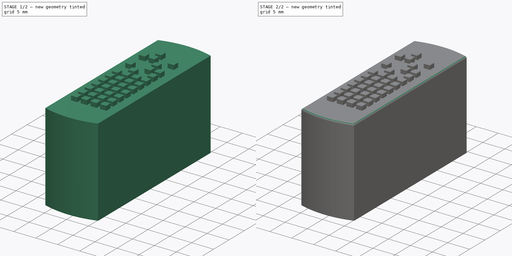
[diagram: build sequence overview — one tinted view per stage of 2, left to right]
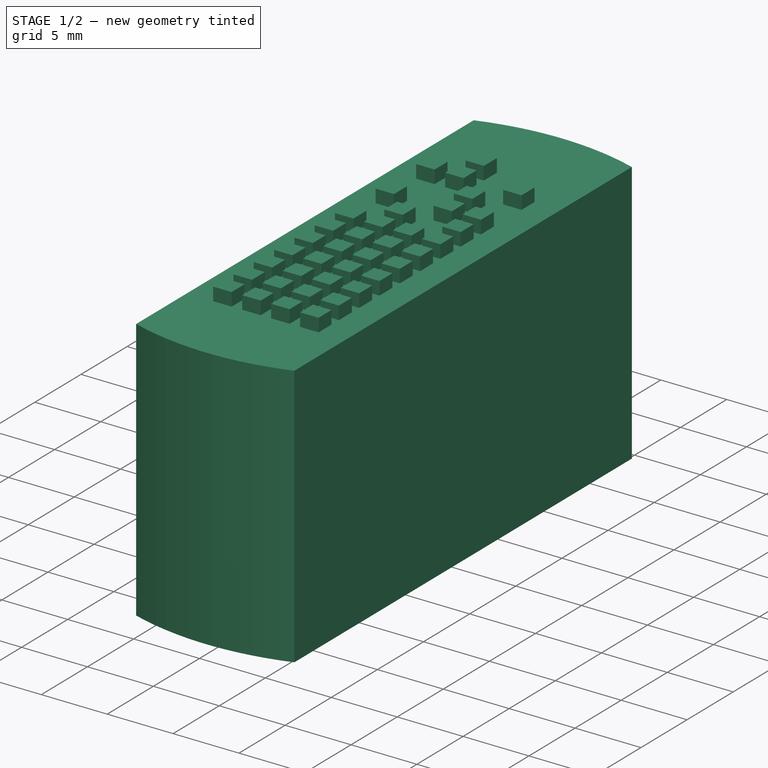
[diagram: stage 1 of 2 — iso view after this stage's code; geometry added in this stage tinted green]
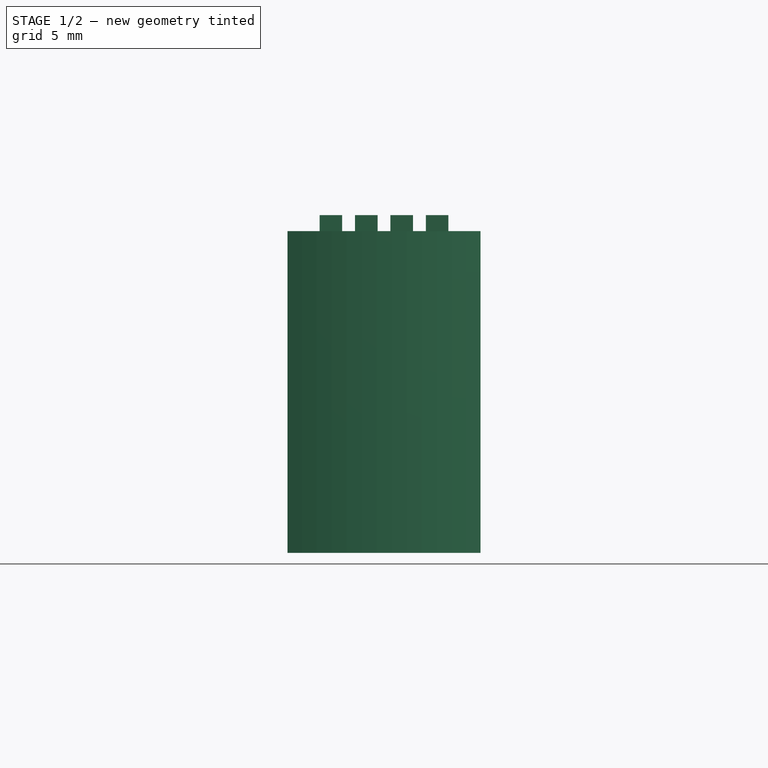
[diagram: stage 1 of 2 — front view after this stage's code; geometry added in this stage tinted green]
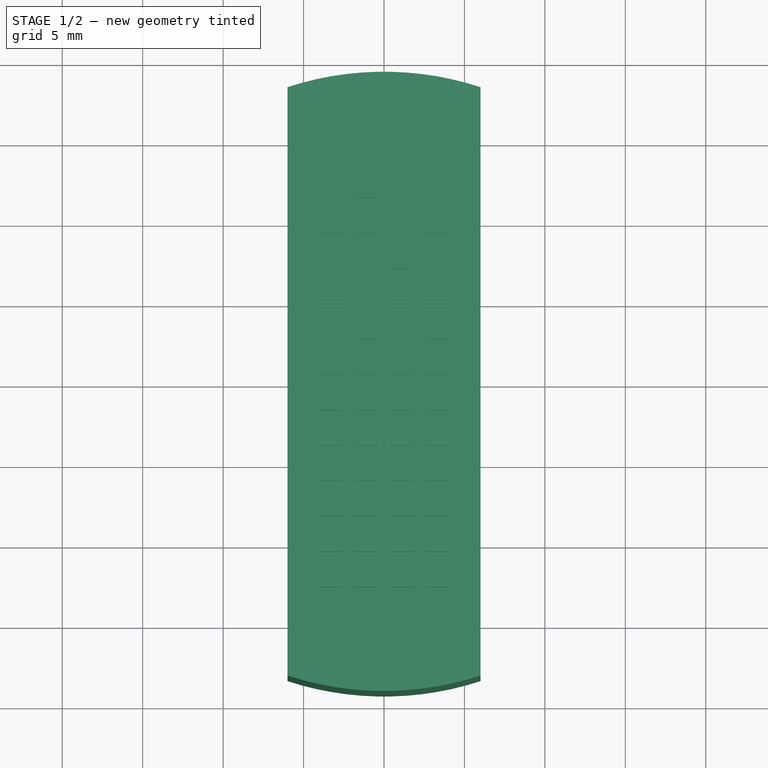
[diagram: stage 1 of 2 — top view after this stage's code; geometry added in this stage tinted green]
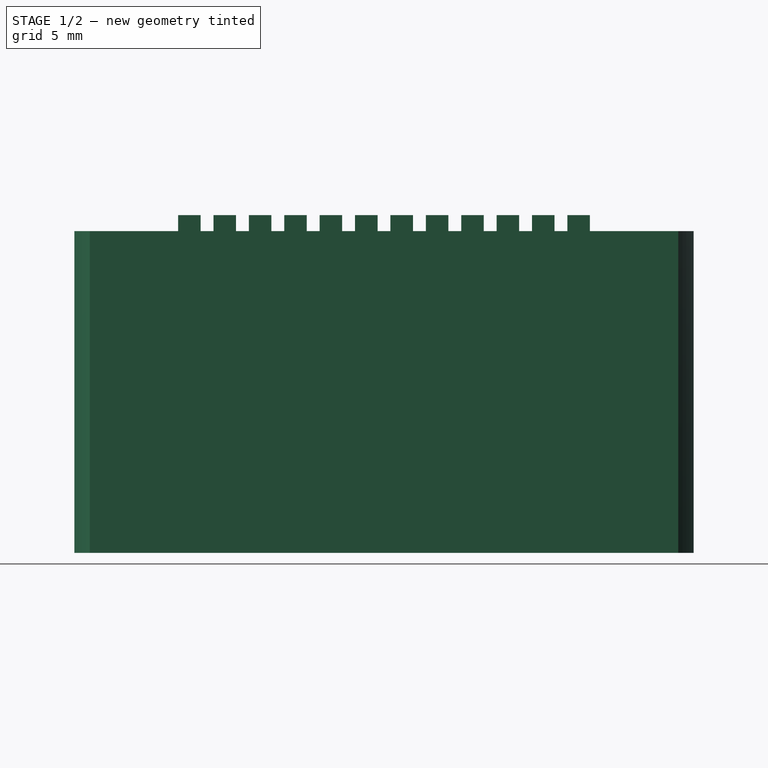
[diagram: stage 1 of 2 — right view after this stage's code; geometry added in this stage tinted green]
FCSTD DOCUMENT  (FreeCAD 0.18R16131 (Git))
Label: Stempel rote spots 3 (gespiegelt)
License: All rights reserved
LicenseURL: http://en.wikipedia.org/wiki/All_rights_reserved
objects: Sketcher::SketchObject×2, PartDesign::Pad×2, PartDesign::Chamfer×1, PartDesign::Fillet×1, PartDesign::Body×1
note: 9 computed .brp shape members not serialized (recipe doc carries the construction recipe); baked Part::Feature solids carry a one-line shape summary decoded from their .brp

FEATURE [Sketcher::SketchObject] Sketch
  MapMode = 5
  Support = -> [XY_Plane]
  sketch-geometry (4):
    g0: LineSegment StartX=-6 StartY=18.291 StartZ=0 EndX=-6 EndY=-18.291 EndZ=0
    g1: LineSegment StartX=6 StartY=18.291 StartZ=0 EndX=6 EndY=-18.291 EndZ=0
    g2: ArcOfCircle CenterX=0 CenterY=0 CenterZ=0 NormalX=0 NormalY=0 NormalZ=1 AngleXU=0 Radius=19.25 StartAngle=1.25383 EndAngle=1.88777
    g3: ArcOfCircle CenterX=0 CenterY=0 CenterZ=0 NormalX=0 NormalY=0 NormalZ=1 AngleXU=0 Radius=19.25 StartAngle=4.39542 EndAngle=5.02936
  constraints (12):
    c: Coincident(g3,g-1)
    c: Coincident(g2,g3)
    c: Radius(g2) = 19.25
    c: Equal(g3,g2)
    c: Coincident(g1,g3)
    c: Coincident(g1,g2)
    c: Coincident(g0,g2)
    c: Coincident(g0,g3)
    c: Vertical(g0)
    c: Vertical(g1)
    c: Equal(g1,g0)
    c: Distance(g0,g1) = 12
FEATURE [PartDesign::Pad] Pad
  Length = 20
  Length2 = 100
  Profile = -> Sketch
  Type = 0
FEATURE [Sketcher::SketchObject] Sketch001
  MapMode = 5
  Placement = pos=(0,0,20) rot=(0,0,1;0rad)
  Support = -> [Pad]
  sketch-geometry (152):
    g0: LineSegment StartX=-4 StartY=-11.4 StartZ=0 EndX=-2.6 EndY=-11.4 EndZ=0
    g1: LineSegment StartX=-2.6 StartY=-11.4 StartZ=0 EndX=-2.6 EndY=-12.8 EndZ=0
    g2: LineSegment StartX=-2.6 StartY=-12.8 StartZ=0 EndX=-4 EndY=-12.8 EndZ=0
    g3: LineSegment StartX=-4 StartY=-12.8 StartZ=0 EndX=-4 EndY=-11.4 EndZ=0
    g4: LineSegment StartX=-1.8 StartY=-11.4 StartZ=0 EndX=-0.4 EndY=-11.4 EndZ=0
    g5: LineSegment StartX=-0.4 StartY=-11.4 StartZ=0 EndX=-0.4 EndY=-12.8 EndZ=0
    g6: LineSegment StartX=-0.4 StartY=-12.8 StartZ=0 EndX=-1.8 EndY=-12.8 EndZ=0
    g7: LineSegment StartX=-1.8 StartY=-12.8 StartZ=0 EndX=-1.8 EndY=-11.4 EndZ=0
    g8: LineSegment StartX=0.4 StartY=-11.4 StartZ=0 EndX=1.8 EndY=-11.4 EndZ=0
    g9: LineSegment StartX=1.8 StartY=-11.4 StartZ=0 EndX=1.8 EndY=-12.8 EndZ=0
    g10: LineSegment StartX=1.8 StartY=-12.8 StartZ=0 EndX=0.4 EndY=-12.8 EndZ=0
    g11: LineSegment StartX=0.4 StartY=-12.8 StartZ=0 EndX=0.4 EndY=-11.4 EndZ=0
    g12: LineSegment StartX=2.6 StartY=-11.4 StartZ=0 EndX=4 EndY=-11.4 EndZ=0
    g13: LineSegment StartX=4 StartY=-11.4 StartZ=0 EndX=4 EndY=-12.8 EndZ=0
    g14: LineSegment StartX=4 StartY=-12.8 StartZ=0 EndX=2.6 EndY=-12.8 EndZ=0
    g15: LineSegment StartX=2.6 StartY=-12.8 StartZ=0 EndX=2.6 EndY=-11.4 EndZ=0
    g16: LineSegment StartX=-4 StartY=-9.2 StartZ=0 EndX=-2.6 EndY=-9.2 EndZ=0
    g17: LineSegment StartX=-2.6 StartY=-9.2 StartZ=0 EndX=-2.6 EndY=-10.6 EndZ=0
    g18: LineSegment StartX=-2.6 StartY=-10.6 StartZ=0 EndX=-4 EndY=-10.6 EndZ=0
    g19: LineSegment StartX=-4 StartY=-10.6 StartZ=0 EndX=-4 EndY=-9.2 EndZ=0
    g20: LineSegment StartX=-1.8 StartY=-9.2 StartZ=0 EndX=-0.4 EndY=-9.2 EndZ=0
    g21: LineSegment StartX=-0.4 StartY=-9.2 StartZ=0 EndX=-0.4 EndY=-10.6 EndZ=0
    g22: LineSegment StartX=-0.4 StartY=-10.6 StartZ=0 EndX=-1.8 EndY=-10.6 EndZ=0
    g23: LineSegment StartX=-1.8 StartY=-10.6 StartZ=0 EndX=-1.8 EndY=-9.2 EndZ=0
    g24: LineSegment StartX=0.4 StartY=-9.2 StartZ=0 EndX=1.8 EndY=-9.2 EndZ=0
    g25: LineSegment StartX=1.8 StartY=-9.2 StartZ=0 EndX=1.8 EndY=-10.6 EndZ=0
    g26: LineSegment StartX=1.8 StartY=-10.6 StartZ=0 EndX=0.4 EndY=-10.6 EndZ=0
    g27: LineSegment StartX=0.4 StartY=-10.6 StartZ=0 EndX=0.4 EndY=-9.2 EndZ=0
    g28: LineSegment StartX=2.6 StartY=-9.2 StartZ=0 EndX=4 EndY=-9.2 EndZ=0
    g29: LineSegment StartX=4 StartY=-9.2 StartZ=0 EndX=4 EndY=-10.6 EndZ=0
    g30: LineSegment StartX=4 StartY=-10.6 StartZ=0 EndX=2.6 EndY=-10.6 EndZ=0
    g31: LineSegment StartX=2.6 StartY=-10.6 StartZ=0 EndX=2.6 EndY=-9.2 EndZ=0
    g32: LineSegment StartX=-4 StartY=-7 StartZ=0 EndX=-2.6 EndY=-7 EndZ=0
    g33: LineSegment StartX=-2.6 StartY=-7 StartZ=0 EndX=-2.6 EndY=-8.4 EndZ=0
    g34: LineSegment StartX=-2.6 StartY=-8.4 StartZ=0 EndX=-4 EndY=-8.4 EndZ=0
    g35: LineSegment StartX=-4 StartY=-8.4 StartZ=0 EndX=-4 EndY=-7 EndZ=0
    g36: LineSegment StartX=-1.8 StartY=-7 StartZ=0 EndX=-0.4 EndY=-7 EndZ=0
    g37: LineSegment StartX=-0.4 StartY=-7 StartZ=0 EndX=-0.4 EndY=-8.4 EndZ=0
    g38: LineSegment StartX=-0.4 StartY=-8.4 StartZ=0 EndX=-1.8 EndY=-8.4 EndZ=0
    g39: LineSegment StartX=-1.8 StartY=-8.4 StartZ=0 EndX=-1.8 EndY=-7 EndZ=0
    g40: LineSegment StartX=0.4 StartY=-7 StartZ=0 EndX=1.8 EndY=-7 EndZ=0
    g41: LineSegment StartX=1.8 StartY=-7 StartZ=0 EndX=1.8 EndY=-8.4 EndZ=0
    g42: LineSegment StartX=1.8 StartY=-8.4 StartZ=0 EndX=0.4 EndY=-8.4 EndZ=0
    g43: LineSegment StartX=0.4 StartY=-8.4 StartZ=0 EndX=0.4 EndY=-7 EndZ=0
    g44: LineSegment StartX=2.6 StartY=-7 StartZ=0 EndX=4 EndY=-7 EndZ=0
    g45: LineSegment StartX=4 StartY=-7 StartZ=0 EndX=4 EndY=-8.4 EndZ=0
    g46: LineSegment StartX=4 StartY=-8.4 StartZ=0 EndX=2.6 EndY=-8.4 EndZ=0
    g47: LineSegment StartX=2.6 StartY=-8.4 StartZ=0 EndX=2.6 EndY=-7 EndZ=0
    g48: LineSegment StartX=-4 StartY=-4.8 StartZ=0 EndX=-2.6 EndY=-4.8 EndZ=0
    g49: LineSegment StartX=-2.6 StartY=-4.8 StartZ=0 EndX=-2.6 EndY=-6.2 EndZ=0
    g50: LineSegment StartX=-2.6 StartY=-6.2 StartZ=0 EndX=-4 EndY=-6.2 EndZ=0
    g51: LineSegment StartX=-4 StartY=-6.2 StartZ=0 EndX=-4 EndY=-4.8 EndZ=0
    g52: LineSegment StartX=-1.8 StartY=-4.8 StartZ=0 EndX=-0.4 EndY=-4.8 EndZ=0
    g53: LineSegment StartX=-0.4 StartY=-4.8 StartZ=0 EndX=-0.4 EndY=-6.2 EndZ=0
    g54: LineSegment StartX=-0.4 StartY=-6.2 StartZ=0 EndX=-1.8 EndY=-6.2 EndZ=0
    g55: LineSegment StartX=-1.8 StartY=-6.2 StartZ=0 EndX=-1.8 EndY=-4.8 EndZ=0
    g56: LineSegment StartX=0.4 StartY=-4.8 StartZ=0 EndX=1.8 EndY=-4.8 EndZ=0
    g57: LineSegment StartX=1.8 StartY=-4.8 StartZ=0 EndX=1.8 EndY=-6.2 EndZ=0
    g58: LineSegment StartX=1.8 StartY=-6.2 StartZ=0 EndX=0.4 EndY=-6.2 EndZ=0
    g59: LineSegment StartX=0.4 StartY=-6.2 StartZ=0 EndX=0.4 EndY=-4.8 EndZ=0
    g60: LineSegment StartX=2.6 StartY=-4.8 StartZ=0 EndX=4 EndY=-4.8 EndZ=0
    g61: LineSegment StartX=4 StartY=-4.8 StartZ=0 EndX=4 EndY=-6.2 EndZ=0
    g62: LineSegment StartX=4 StartY=-6.2 StartZ=0 EndX=2.6 EndY=-6.2 EndZ=0
    g63: LineSegment StartX=2.6 StartY=-6.2 StartZ=0 EndX=2.6 EndY=-4.8 EndZ=0
    g64: LineSegment StartX=-4 StartY=-2.6 StartZ=0 EndX=-2.6 EndY=-2.6 EndZ=0
    g65: LineSegment StartX=-2.6 StartY=-2.6 StartZ=0 EndX=-2.6 EndY=-4 EndZ=0
    g66: LineSegment StartX=-2.6 StartY=-4 StartZ=0 EndX=-4 EndY=-4 EndZ=0
    g67: LineSegment StartX=-4 StartY=-4 StartZ=0 EndX=-4 EndY=-2.6 EndZ=0
    g68: LineSegment StartX=-1.8 StartY=-2.6 StartZ=0 EndX=-0.4 EndY=-2.6 EndZ=0
    g69: LineSegment StartX=-0.4 StartY=-2.6 StartZ=0 EndX=-0.4 EndY=-4 EndZ=0
    g70: LineSegment StartX=-0.4 StartY=-4 StartZ=0 EndX=-1.8 EndY=-4 EndZ=0
    g71: LineSegment StartX=-1.8 StartY=-4 StartZ=0 EndX=-1.8 EndY=-2.6 EndZ=0
    g72: LineSegment StartX=0.4 StartY=-2.6 StartZ=0 EndX=1.8 EndY=-2.6 EndZ=0
    g73: LineSegment StartX=1.8 StartY=-2.6 StartZ=0 EndX=1.8 EndY=-4 EndZ=0
    g74: LineSegment StartX=1.8 StartY=-4 StartZ=0 EndX=0.4 EndY=-4 EndZ=0
    g75: LineSegment StartX=0.4 StartY=-4 StartZ=0 EndX=0.4 EndY=-2.6 EndZ=0
    g76: LineSegment StartX=2.6 StartY=-2.6 StartZ=0 EndX=4 EndY=-2.6 EndZ=0
    g77: LineSegment StartX=4 StartY=-2.6 StartZ=0 EndX=4 EndY=-4 EndZ=0
    g78: LineSegment StartX=4 StartY=-4 StartZ=0 EndX=2.6 EndY=-4 EndZ=0
    g79: LineSegment StartX=2.6 StartY=-4 StartZ=0 EndX=2.6 EndY=-2.6 EndZ=0
    g80: LineSegment StartX=-4 StartY=-0.4 StartZ=0 EndX=-2.6 EndY=-0.4 EndZ=0
    g81: LineSegment StartX=-2.6 StartY=-0.4 StartZ=0 EndX=-2.6 EndY=-1.8 EndZ=0
    g82: LineSegment StartX=-2.6 StartY=-1.8 StartZ=0 EndX=-4 EndY=-1.8 EndZ=0
    g83: LineSegment StartX=-4 StartY=-1.8 StartZ=0 EndX=-4 EndY=-0.4 EndZ=0
    g84: LineSegment StartX=-1.8 StartY=-0.4 StartZ=0 EndX=-0.4 EndY=-0.4 EndZ=0
    g85: LineSegment StartX=-0.4 StartY=-0.4 StartZ=0 EndX=-0.4 EndY=-1.8 EndZ=0
    g86: LineSegment StartX=-0.4 StartY=-1.8 StartZ=0 EndX=-1.8 EndY=-1.8 EndZ=0
    g87: LineSegment StartX=-1.8 StartY=-1.8 StartZ=0 EndX=-1.8 EndY=-0.4 EndZ=0
    g88: LineSegment StartX=0.4 StartY=-0.4 StartZ=0 EndX=1.8 EndY=-0.4 EndZ=0
    g89: LineSegment StartX=1.8 StartY=-0.4 StartZ=0 EndX=1.8 EndY=-1.8 EndZ=0
    g90: LineSegment StartX=1.8 StartY=-1.8 StartZ=0 EndX=0.4 EndY=-1.8 EndZ=0
    g91: LineSegment StartX=0.4 StartY=-1.8 StartZ=0 EndX=0.4 EndY=-0.4 EndZ=0
    g92: LineSegment StartX=2.6 StartY=-0.4 StartZ=0 EndX=4 EndY=-0.4 EndZ=0
    g93: LineSegment StartX=4 StartY=-0.4 StartZ=0 EndX=4 EndY=-1.8 EndZ=0
    g94: LineSegment StartX=4 StartY=-1.8 StartZ=0 EndX=2.6 EndY=-1.8 EndZ=0
    g95: LineSegment StartX=2.6 StartY=-1.8 StartZ=0 EndX=2.6 EndY=-0.4 EndZ=0
    g96: LineSegment StartX=-4 StartY=1.8 StartZ=0 EndX=-2.6 EndY=1.8 EndZ=0
    g97: LineSegment StartX=-2.6 StartY=1.8 StartZ=0 EndX=-2.6 EndY=0.4 EndZ=0
    g98: LineSegment StartX=-2.6 StartY=0.4 StartZ=0 EndX=-4 EndY=0.4 EndZ=0
    g99: LineSegment StartX=-4 StartY=0.4 StartZ=0 EndX=-4 EndY=1.8 EndZ=0
    g100: LineSegment StartX=-1.8 StartY=1.8 StartZ=0 EndX=-0.4 EndY=1.8 EndZ=0
    g101: LineSegment StartX=-0.4 StartY=1.8 StartZ=0 EndX=-0.4 EndY=0.4 EndZ=0
    g102: LineSegment StartX=-0.4 StartY=0.4 StartZ=0 EndX=-1.8 EndY=0.4 EndZ=0
    g103: LineSegment StartX=-1.8 StartY=0.4 StartZ=0 EndX=-1.8 EndY=1.8 EndZ=0
    g104: LineSegment StartX=0.4 StartY=1.8 StartZ=0 EndX=1.8 EndY=1.8 EndZ=0
    g105: LineSegment StartX=1.8 StartY=1.8 StartZ=0 EndX=1.8 EndY=0.4 EndZ=0
    g106: LineSegment StartX=1.8 StartY=0.4 StartZ=0 EndX=0.4 EndY=0.4 EndZ=0
    g107: LineSegment StartX=0.4 StartY=0.4 StartZ=0 EndX=0.4 EndY=1.8 EndZ=0
    g108: LineSegment StartX=2.6 StartY=1.8 StartZ=0 EndX=4 EndY=1.8 EndZ=0
    g109: LineSegment StartX=4 StartY=1.8 StartZ=0 EndX=4 EndY=0.4 EndZ=0
    g110: LineSegment StartX=4 StartY=0.4 StartZ=0 EndX=2.6 EndY=0.4 EndZ=0
    g111: LineSegment StartX=2.6 StartY=0.4 StartZ=0 EndX=2.6 EndY=1.8 EndZ=0
    g112: LineSegment StartX=-1.8 StartY=4 StartZ=0 EndX=-0.4 EndY=4 EndZ=0
    g113: LineSegment StartX=-0.4 StartY=4 StartZ=0 EndX=-0.4 EndY=2.6 EndZ=0
    g114: LineSegment StartX=-0.4 StartY=2.6 StartZ=0 EndX=-1.8 EndY=2.6 EndZ=0
    g115: LineSegment StartX=-1.8 StartY=2.6 StartZ=0 EndX=-1.8 EndY=4 EndZ=0
    g116: LineSegment StartX=2.6 StartY=4 StartZ=0 EndX=4 EndY=4 EndZ=0
    g117: LineSegment StartX=4 StartY=4 StartZ=0 EndX=4 EndY=2.6 EndZ=0
    g118: LineSegment StartX=4 StartY=2.6 StartZ=0 EndX=2.6 EndY=2.6 EndZ=0
    g119: LineSegment StartX=2.6 StartY=2.6 StartZ=0 EndX=2.6 EndY=4 EndZ=0
    g120: LineSegment StartX=-4 StartY=6.2 StartZ=0 EndX=-2.6 EndY=6.2 EndZ=0
    g121: LineSegment StartX=-2.6 StartY=6.2 StartZ=0 EndX=-2.6 EndY=4.8 EndZ=0
    g122: LineSegment StartX=-2.6 StartY=4.8 StartZ=0 EndX=-4 EndY=4.8 EndZ=0
    g123: LineSegment StartX=-4 StartY=4.8 StartZ=0 EndX=-4 EndY=6.2 EndZ=0
    g124: LineSegment StartX=0.4 StartY=6.2 StartZ=0 EndX=1.8 EndY=6.2 EndZ=0
    g125: LineSegment StartX=1.8 StartY=6.2 StartZ=0 EndX=1.8 EndY=4.8 EndZ=0
    g126: LineSegment StartX=1.8 StartY=4.8 StartZ=0 EndX=0.4 EndY=4.8 EndZ=0
    g127: LineSegment StartX=0.4 StartY=4.8 StartZ=0 EndX=0.4 EndY=6.2 EndZ=0
    g128: LineSegment StartX=2.6 StartY=6.2 StartZ=0 EndX=4 EndY=6.2 EndZ=0
    g129: LineSegment StartX=4 StartY=6.2 StartZ=0 EndX=4 EndY=4.8 EndZ=0
    g130: LineSegment StartX=4 StartY=4.8 StartZ=0 EndX=2.6 EndY=4.8 EndZ=0
    g131: LineSegment StartX=2.6 StartY=4.8 StartZ=0 EndX=2.6 EndY=6.2 EndZ=0
    g132: LineSegment StartX=0.4 StartY=8.4 StartZ=0 EndX=1.8 EndY=8.4 EndZ=0
    g133: LineSegment StartX=1.8 StartY=8.4 StartZ=0 EndX=1.8 EndY=7 EndZ=0
    g134: LineSegment StartX=1.8 StartY=7 StartZ=0 EndX=0.4 EndY=7 EndZ=0
    g135: LineSegment StartX=0.4 StartY=7 StartZ=0 EndX=0.4 EndY=8.4 EndZ=0
    g136: LineSegment StartX=-4 StartY=10.6 StartZ=0 EndX=-2.6 EndY=10.6 EndZ=0
    g137: LineSegment StartX=-2.6 StartY=10.6 StartZ=0 EndX=-2.6 EndY=9.2 EndZ=0
    g138: LineSegment StartX=-2.6 StartY=9.2 StartZ=0 EndX=-4 EndY=9.2 EndZ=0
    g139: LineSegment StartX=-4 StartY=9.2 StartZ=0 EndX=-4 EndY=10.6 EndZ=0
    g140: LineSegment StartX=-1.8 StartY=10.6 StartZ=0 EndX=-0.4 EndY=10.6 EndZ=0
    g141: LineSegment StartX=-0.4 StartY=10.6 StartZ=0 EndX=-0.4 EndY=9.2 EndZ=0
    g142: LineSegment StartX=-0.4 StartY=9.2 StartZ=0 EndX=-1.8 EndY=9.2 EndZ=0
    g143: LineSegment StartX=-1.8 StartY=9.2 StartZ=0 EndX=-1.8 EndY=10.6 EndZ=0
    g144: LineSegment StartX=2.6 StartY=10.6 StartZ=0 EndX=4 EndY=10.6 EndZ=0
    g145: LineSegment StartX=4 StartY=10.6 StartZ=0 EndX=4 EndY=9.2 EndZ=0
    g146: LineSegment StartX=4 StartY=9.2 StartZ=0 EndX=2.6 EndY=9.2 EndZ=0
    g147: LineSegment StartX=2.6 StartY=9.2 StartZ=0 EndX=2.6 EndY=10.6 EndZ=0
    g148: LineSegment StartX=-1.8 StartY=12.8 StartZ=0 EndX=-0.4 EndY=12.8 EndZ=0
    g149: LineSegment StartX=-0.4 StartY=12.8 StartZ=0 EndX=-0.4 EndY=11.4 EndZ=0
    g150: LineSegment StartX=-0.4 StartY=11.4 StartZ=0 EndX=-1.8 EndY=11.4 EndZ=0
    g151: LineSegment StartX=-1.8 StartY=11.4 StartZ=0 EndX=-1.8 EndY=12.8 EndZ=0
  constraints (456):
    c: Coincident(g0,g1)
    c: Coincident(g1,g2)
    c: Coincident(g2,g3)
    c: Coincident(g3,g0)
    c: Horizontal(g0)
    c: Horizontal(g2)
    c: Vertical(g1)
    c: Vertical(g3)
    c: Coincident(g4,g5)
    c: Coincident(g5,g6)
    c: Coincident(g6,g7)
    c: Coincident(g7,g4)
    c: Horizontal(g4)
    c: Horizontal(g6)
    c: Vertical(g5)
    c: Vertical(g7)
    c: Coincident(g8,g9)
    c: Coincident(g9,g10)
    c: Coincident(g10,g11)
    c: Coincident(g11,g8)
    c: Horizontal(g8)
    c: Horizontal(g10)
    c: Vertical(g9)
    c: Vertical(g11)
    c: Coincident(g12,g13)
    c: Coincident(g13,g14)
    c: Coincident(g14,g15)
    c: Coincident(g15,g12)
    c: Horizontal(g12)
    c: Horizontal(g14)
    c: Vertical(g13)
    c: Vertical(g15)
    c: Equal(g14,g13)
    c: Equal(g13,g9)
    c: Equal(g9,g10)
    c: Equal(g10,g5)
    c: Equal(g5,g6)
    c: Equal(g6,g1)
    c: Equal(g1,g2)
    c: DistanceX(g-2,g13) = 4
    c: Distance(g14) = 1.4
    c: Distance(g14,g9) = 0.8
    c: Distance(g10,g5) = 0.8
    c: Distance(g6,g1) = 0.8
    c: DistanceY(g-1,g2) = -12.8
    c: DistanceY(g-1,g6) = -12.8
    c: DistanceY(g-1,g10) = -12.8
    c: DistanceY(g-1,g14) = -12.8
    c: Coincident(g16,g17)
    c: Coincident(g17,g18)
    c: Coincident(g18,g19)
    c: Coincident(g19,g16)
    c: Horizontal(g16)
    c: Horizontal(g18)
    c: Vertical(g17)
    c: Vertical(g19)
    c: Coincident(g20,g21)
    c: Coincident(g21,g22)
    c: Coincident(g22,g23)
    c: Coincident(g23,g20)
    c: Horizontal(g20)
    c: Horizontal(g22)
    c: Vertical(g21)
    c: Vertical(g23)
    c: Coincident(g24,g25)
    c: Coincident(g25,g26)
    c: Coincident(g26,g27)
    c: Coincident(g27,g24)
    c: Horizontal(g24)
    c: Horizontal(g26)
    c: Vertical(g25)
    c: Vertical(g27)
    c: Coincident(g28,g29)
    c: Coincident(g29,g30)
    c: Coincident(g30,g31)
    c: Coincident(g31,g28)
    c: Horizontal(g28)
    c: Horizontal(g30)
    c: Vertical(g29)
    c: Vertical(g31)
    c: Equal(g30,g29)
    c: Equal(g29,g25)
    c: Equal(g25,g26)
    c: Equal(g26,g21)
    c: Equal(g21,g22)
    c: Equal(g22,g17)
    c: Equal(g17,g18)
    c: Equal(g14,g30) = 1.4
    c: Distance(g30,g25) = 0.8
    c: Distance(g26,g21) = 0.8
    c: Distance(g22,g17) = 0.8
    c: DistanceX(g-2,g29) = 4
    c: Coincident(g32,g33)
    c: Coincident(g33,g34)
    c: Coincident(g34,g35)
    c: Coincident(g35,g32)
    c: Horizontal(g32)
    c: Horizontal(g34)
    c: Vertical(g33)
    c: Vertical(g35)
    c: Coincident(g36,g37)
    c: Coincident(g37,g38)
    c: Coincident(g38,g39)
    c: Coincident(g39,g36)
    c: Horizontal(g36)
    c: Horizontal(g38)
    c: Vertical(g37)
    c: Vertical(g39)
    c: Coincident(g40,g41)
    c: Coincident(g41,g42)
    c: Coincident(g42,g43)
    c: Coincident(g43,g40)
    c: Horizontal(g40)
    c: Horizontal(g42)
    c: Vertical(g41)
    c: Vertical(g43)
    c: Coincident(g44,g45)
    c: Coincident(g45,g46)
    c: Coincident(g46,g47)
    c: Coincident(g47,g44)
    c: Horizontal(g44)
    c: Horizontal(g46)
    c: Vertical(g45)
    c: Vertical(g47)
    c: Equal(g46,g45)
    c: Equal(g45,g41)
    c: Equal(g41,g42)
    c: Equal(g42,g37)
    c: Equal(g37,g38)
    c: Equal(g38,g33)
    c: Equal(g33,g34)
    c: Distance(g46,g41) = 0.8
    c: Distance(g42,g37) = 0.8
    c: Distance(g38,g33) = 0.8
    c: Distance(g29,g12) = 0.8
    c: Distance(g25,g8) = 0.8
    c: Distance(g21,g4) = 0.8
    c: Distance(g17,g0) = 0.8
    c: Distance(g33,g16) = 0.8
    c: Distance(g20,g38) = 0.8
    c: Distance(g41,g24) = 0.8
    c: Distance(g45,g28) = 0.8
    c: DistanceX(g-2,g45) = 4
    c: Equal(g45,g29)
    c: Coincident(g48,g49)
    c: Coincident(g49,g50)
    c: Coincident(g50,g51)
    c: Coincident(g51,g48)
    c: Horizontal(g48)
    c: Horizontal(g50)
    c: Vertical(g49)
    c: Vertical(g51)
    c: Coincident(g52,g53)
    c: Coincident(g53,g54)
    c: Coincident(g54,g55)
    c: Coincident(g55,g52)
    c: Horizontal(g52)
    c: Horizontal(g54)
    c: Vertical(g53)
    c: Vertical(g55)
    c: Coincident(g56,g57)
    c: Coincident(g57,g58)
    c: Coincident(g58,g59)
    c: Coincident(g59,g56)
    c: Horizontal(g56)
    c: Horizontal(g58)
    c: Vertical(g57)
    c: Vertical(g59)
    c: Coincident(g60,g61)
    c: Coincident(g61,g62)
    c: Coincident(g62,g63)
    c: Coincident(g63,g60)
    c: Horizontal(g60)
    c: Horizontal(g62)
    c: Vertical(g61)
    c: Vertical(g63)
    c: Equal(g62,g61)
    c: Equal(g61,g57)
    c: Equal(g57,g58)
    c: Equal(g58,g53)
    c: Equal(g53,g54)
    c: Equal(g54,g49)
    c: Equal(g49,g50)
    c: Equal(g14,g62) = 1.4
    c: Distance(g62,g57) = 0.8
    c: Distance(g58,g53) = 0.8
    c: Distance(g54,g49) = 0.8
    c: Coincident(g64,g65)
    c: Coincident(g65,g66)
    c: Coincident(g66,g67)
    c: Coincident(g67,g64)
    c: Horizontal(g64)
    c: Horizontal(g66)
    c: Vertical(g65)
    c: Vertical(g67)
    c: Coincident(g68,g69)
    c: Coincident(g69,g70)
    c: Coincident(g70,g71)
    c: Coincident(g71,g68)
    c: Horizontal(g68)
    c: Horizontal(g70)
    c: Vertical(g69)
    c: Vertical(g71)
    c: Coincident(g72,g73)
    c: Coincident(g73,g74)
    c: Coincident(g74,g75)
    c: Coincident(g75,g72)
    c: Horizontal(g72)
    c: Horizontal(g74)
    c: Vertical(g73)
    c: Vertical(g75)
    c: Coincident(g76,g77)
    c: Coincident(g77,g78)
    c: Coincident(g78,g79)
    c: Coincident(g79,g76)
    c: Horizontal(g76)
    c: Horizontal(g78)
    c: Vertical(g77)
    c: Vertical(g79)
    c: Equal(g78,g77)
    c: Equal(g77,g73)
    c: Equal(g73,g74)
    c: Equal(g74,g69)
    c: Equal(g69,g70)
    c: Equal(g70,g65)
    c: Equal(g65,g66)
    c: Equal(g62,g78) = 1.4
    c: Distance(g78,g73) = 0.8
    c: Distance(g74,g69) = 0.8
    c: Distance(g70,g65) = 0.8
    c: Coincident(g80,g81)
    c: Coincident(g81,g82)
    c: Coincident(g82,g83)
    c: Coincident(g83,g80)
    c: Horizontal(g80)
    c: Horizontal(g82)
    c: Vertical(g81)
    c: Vertical(g83)
    c: Coincident(g84,g85)
    c: Coincident(g85,g86)
    c: Coincident(g86,g87)
    c: Coincident(g87,g84)
    c: Horizontal(g84)
    c: Horizontal(g86)
    c: Vertical(g85)
    c: Vertical(g87)
    c: Coincident(g88,g89)
    c: Coincident(g89,g90)
    c: Coincident(g90,g91)
    c: Coincident(g91,g88)
    c: Horizontal(g88)
    c: Horizontal(g90)
    c: Vertical(g89)
    c: Vertical(g91)
    c: Coincident(g92,g93)
    c: Coincident(g93,g94)
    c: Coincident(g94,g95)
    c: Coincident(g95,g92)
    c: Horizontal(g92)
    c: Horizontal(g94)
    c: Vertical(g93)
    c: Vertical(g95)
    c: Equal(g94,g93)
    c: Equal(g93,g89)
    c: Equal(g89,g90)
    c: Equal(g90,g85)
    c: Equal(g85,g86)
    c: Equal(g86,g81)
    c: Equal(g81,g82)
    c: Distance(g94,g89) = 0.8
    c: Distance(g90,g85) = 0.8
    c: Distance(g86,g81) = 0.8
    c: Distance(g77,g60) = 0.8
    c: Distance(g73,g56) = 0.8
    c: Distance(g69,g52) = 0.8
    c: Distance(g65,g48) = 0.8
    c: Distance(g81,g64) = 0.8
    c: Distance(g68,g86) = 0.8
    c: Distance(g89,g72) = 0.8
    c: Distance(g93,g76) = 0.8
    c: Equal(g93,g77)
    c: Distance(g40,g58) = 0.8
    c: Distance(g44,g62) = 0.8
    c: DistanceX(g-2,g61) = 4
    c: Distance(g53,g36) = 0.8
    c: Distance(g49,g32) = 0.8
    c: DistanceX(g-2,g77) = 4
    c: DistanceX(g-2,g93) = 4
    c: Coincident(g96,g97)
    c: Coincident(g97,g98)
    c: Coincident(g98,g99)
    c: Coincident(g99,g96)
    c: Horizontal(g96)
    c: Horizontal(g98)
    c: Vertical(g97)
    c: Vertical(g99)
    c: Coincident(g100,g101)
    c: Coincident(g101,g102)
    c: Coincident(g102,g103)
    c: Coincident(g103,g100)
    c: Horizontal(g100)
    c: Horizontal(g102)
    c: Vertical(g101)
    c: Vertical(g103)
    c: Coincident(g104,g105)
    c: Coincident(g105,g106)
    c: Coincident(g106,g107)
    c: Coincident(g107,g104)
    c: Horizontal(g104)
    c: Horizontal(g106)
    c: Vertical(g105)
    c: Vertical(g107)
    c: Coincident(g108,g109)
    c: Coincident(g109,g110)
    c: Coincident(g110,g111)
    c: Coincident(g111,g108)
    c: Horizontal(g108)
    c: Horizontal(g110)
    c: Vertical(g109)
    c: Vertical(g111)
    c: Equal(g110,g109)
    c: Equal(g109,g105)
    c: Equal(g105,g106)
    c: Equal(g106,g101)
    c: Equal(g101,g102)
    c: Equal(g102,g97)
    c: Equal(g97,g98)
    c: Equal(g14,g110) = 1.4
    c: Distance(g110,g105) = 0.8
    c: Distance(g106,g101) = 0.8
    c: Distance(g102,g97) = 0.8
    c: Coincident(g112,g113)
    c: Coincident(g113,g114)
    c: Coincident(g114,g115)
    c: Coincident(g115,g112)
    c: Horizontal(g112)
    c: Horizontal(g114)
    c: Vertical(g113)
    c: Vertical(g115)
    c: Coincident(g116,g117)
    c: Coincident(g117,g118)
    c: Coincident(g118,g119)
    c: Coincident(g119,g116)
    c: Horizontal(g116)
    c: Horizontal(g118)
    c: Vertical(g117)
    c: Vertical(g119)
    c: Equal(g118,g117)
    c: Equal(g113,g114)
    c: Equal(g110,g118) = 1.4
    c: Coincident(g120,g121)
    c: Coincident(g121,g122)
    c: Coincident(g122,g123)
    c: Coincident(g123,g120)
    c: Horizontal(g120)
    c: Horizontal(g122)
    c: Vertical(g121)
    c: Vertical(g123)
    c: Coincident(g124,g125)
    c: Coincident(g125,g126)
    c: Coincident(g126,g127)
    c: Coincident(g127,g124)
    c: Horizontal(g124)
    c: Horizontal(g126)
    c: Vertical(g125)
    c: Vertical(g127)
    c: Coincident(g128,g129)
    c: Coincident(g129,g130)
    c: Coincident(g130,g131)
    c: Coincident(g131,g128)
    c: Horizontal(g128)
    c: Horizontal(g130)
    c: Vertical(g129)
    c: Vertical(g131)
    c: Equal(g130,g129)
    c: Equal(g129,g125)
    c: Equal(g125,g126)
    c: Equal(g121,g122)
    c: Distance(g130,g125) = 0.8
    c: Distance(g117,g108) = 0.8
    c: Distance(g113,g100) = 0.8
    c: Distance(g129,g116) = 0.8
    c: Equal(g129,g117)
    c: Coincident(g132,g133)
    c: Coincident(g133,g134)
    c: Coincident(g134,g135)
    c: Coincident(g135,g132)
    c: Horizontal(g132)
    c: Horizontal(g134)
    c: Vertical(g133)
    c: Vertical(g135)
    c: Equal(g133,g134)
    c: Coincident(g136,g137)
    c: Coincident(g137,g138)
    c: Coincident(g138,g139)
    c: Coincident(g139,g136)
    c: Horizontal(g136)
    c: Horizontal(g138)
    c: Vertical(g137)
    c: Vertical(g139)
    c: Coincident(g140,g141)
    c: Coincident(g141,g142)
    c: Coincident(g142,g143)
    c: Coincident(g143,g140)
    c: Horizontal(g140)
    c: Horizontal(g142)
    c: Vertical(g141)
    c: Vertical(g143)
    c: Coincident(g144,g145)
    c: Coincident(g145,g146)
    c: Coincident(g146,g147)
    c: Coincident(g147,g144)
    c: Horizontal(g144)
    c: Horizontal(g146)
    c: Vertical(g145)
    c: Vertical(g147)
    c: Equal(g146,g145)
    c: Equal(g141,g142)
    c: Equal(g142,g137)
    c: Equal(g137,g138)
    c: Distance(g142,g137) = 0.8
    c: Coincident(g148,g149)
    c: Coincident(g149,g150)
    c: Coincident(g150,g151)
    c: Coincident(g151,g148)
    c: Horizontal(g148)
    c: Horizontal(g150)
    c: Vertical(g149)
    c: Vertical(g151)
    c: Equal(g149,g150)
    c: Distance(g140,g150) = 0.8
    c: Distance(g124,g134) = 0.8
    c: Distance(g109,g92) = 0.8
    c: Distance(g105,g88) = 0.8
    c: Distance(g101,g84) = 0.8
    c: Distance(g97,g80) = 0.8
    c: DistanceX(g-2,g109) = 4
    c: DistanceX(g-2,g117) = 4
    c: DistanceX(g-2,g129) = 4
    c: DistanceX(g-2,g145) = 4
    c: DistanceX(g-2,g149) = -0.4
    c: DistanceX(g-2,g141) = -0.4
    c: Distance(g121,g126) = 3
    c: DistanceX(g-2,g113) = -0.4
    c: Distance(g125,g104) = 3
    c: Distance(g96,g122) = 3
    c: Distance(g120,g138) = 3
    c: Distance(g112,g142) = 5.2
    c: Distance(g145,g128) = 3
    c: Equal(g121,g129)
    c: Equal(g141,g145)
    c: Equal(g149,g137)
    c: Equal(g133,g129)
    c: Equal(g113,g117)
    c: DistanceX(g-2,g134) = 0.4
    c: Equal(g145,g129)
FEATURE [PartDesign::Pad] Pad001
  BaseFeature = -> Pad
  Length = 1
  Length2 = 100
  Profile = -> Sketch001
  Type = 0
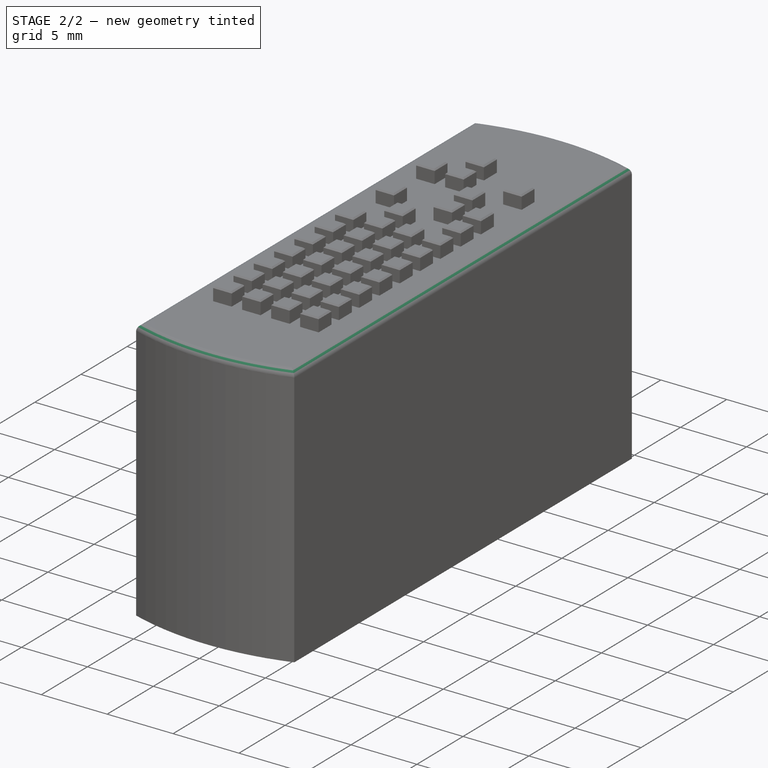
[diagram: stage 2 of 2 — iso view after this stage's code; geometry added in this stage tinted green]
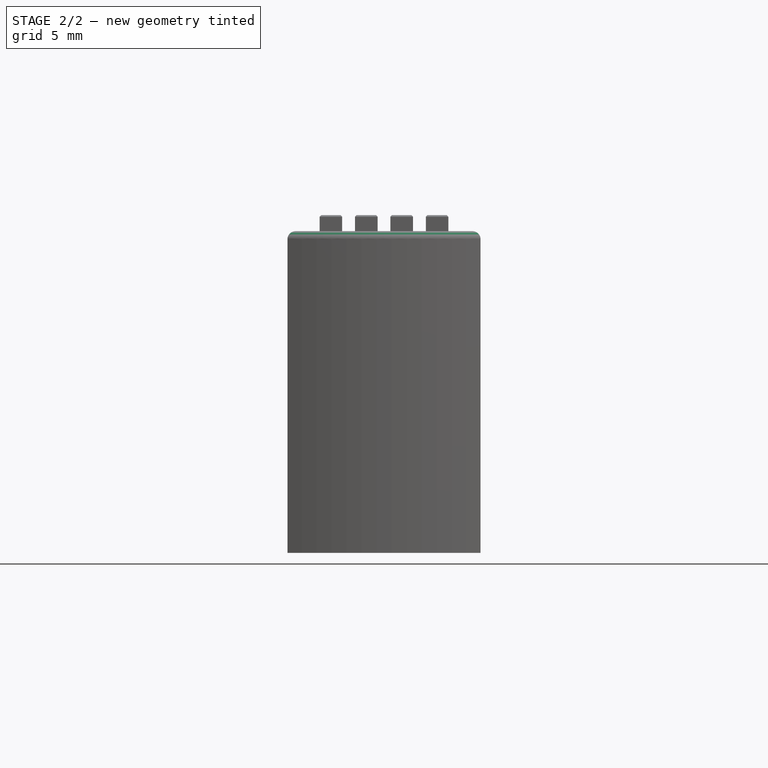
[diagram: stage 2 of 2 — front view after this stage's code; geometry added in this stage tinted green]
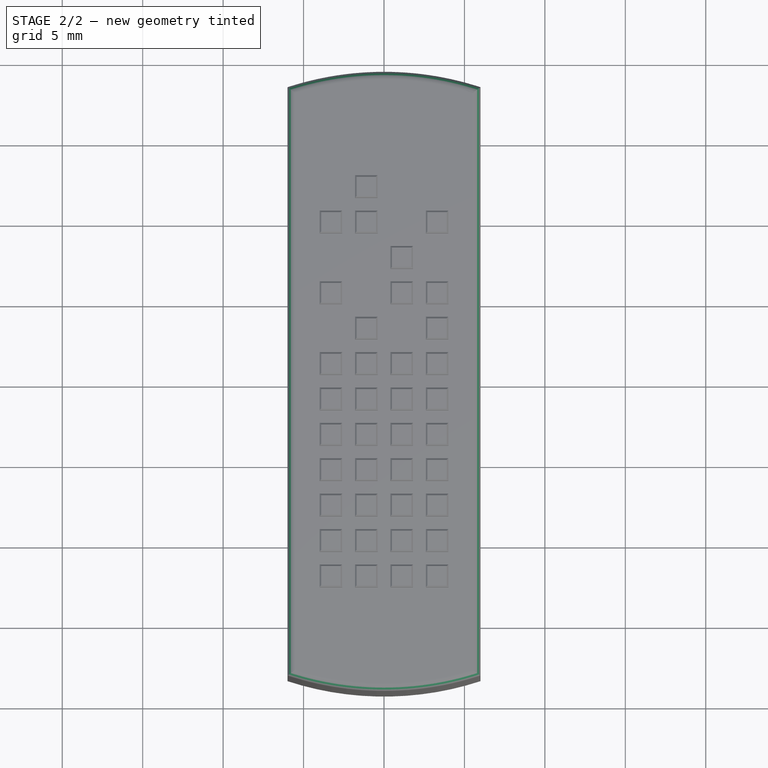
[diagram: stage 2 of 2 — top view after this stage's code; geometry added in this stage tinted green]
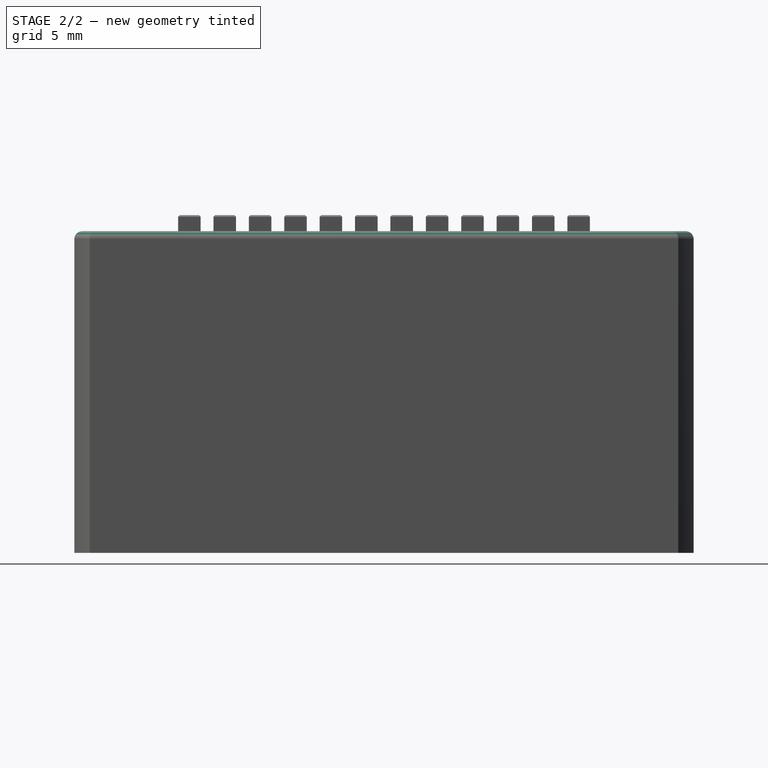
[diagram: stage 2 of 2 — right view after this stage's code; geometry added in this stage tinted green]
FEATURE [PartDesign::Chamfer] Chamfer
  Base = -> Pad001 [Face174,Face175,Face161,Face160,Face159,Face162,Face164,Face163,Face167,Face165,Face166,Face177,Face176,Face170,Face172,Face169,Face168,Face182,Face173,Face171,Face178,Face179,Face180,Face192,Face191,Face193,Face196,Face181,Face188,Face195,Face190,Face189,Face187,Face186,Face185,Face184,Face183,Face194]
  BaseFeature = -> Pad001
  Size = 0.1
FEATURE [PartDesign::Fillet] Fillet
  Base = -> Chamfer [Edge14,Edge11,Edge12,Edge13]
  BaseFeature = -> Chamfer
  Radius = 0.5
FEATURE [PartDesign::Body] Body
  Group = -> [Sketch,Pad,Sketch001,Pad001,Chamfer,Fillet]
  Origin = -> Origin
  Tip = -> Fillet
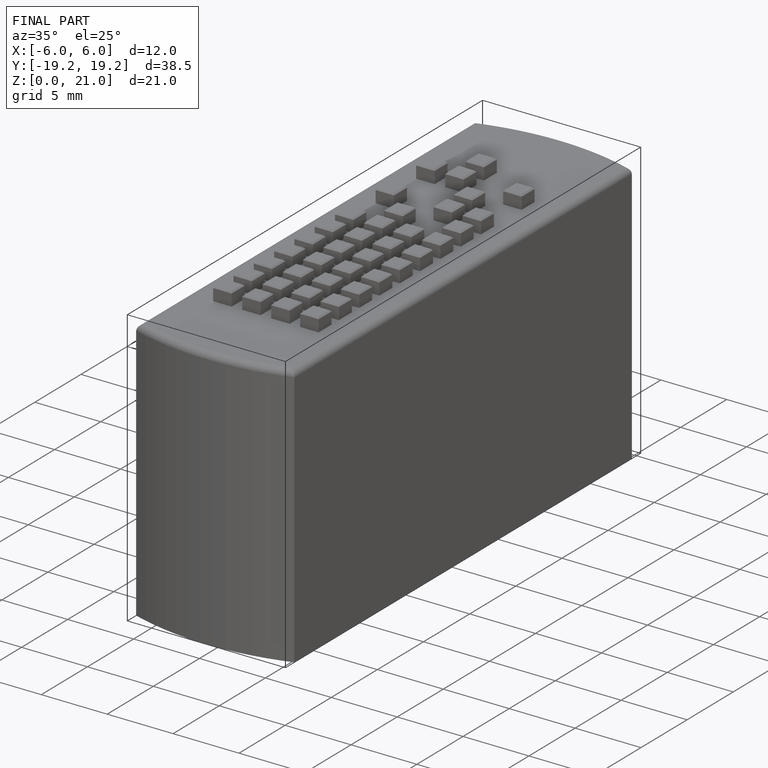
[diagram: finished part — iso view with bounding-box wireframe]
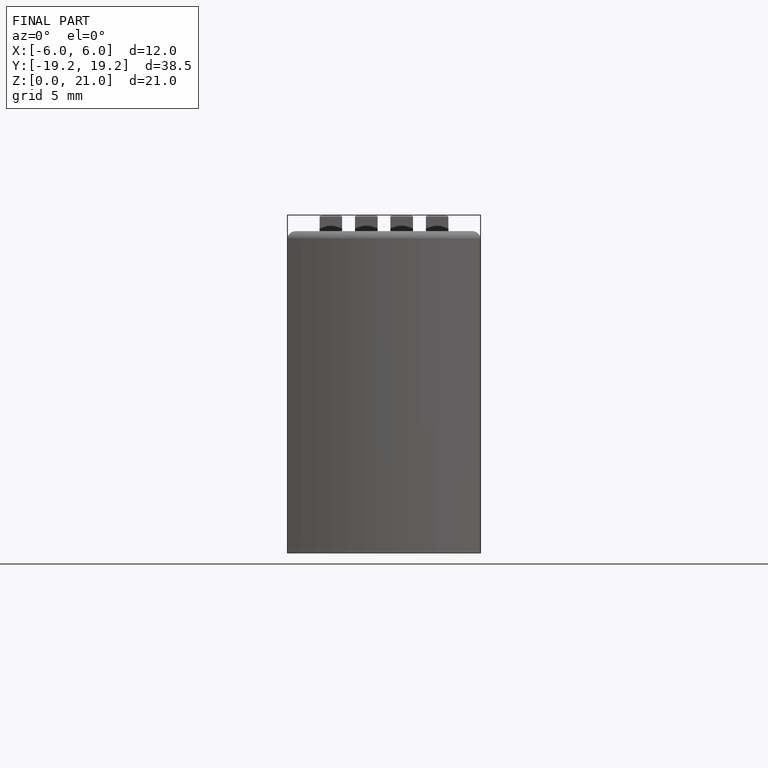
[diagram: finished part — front view with bounding-box wireframe]
